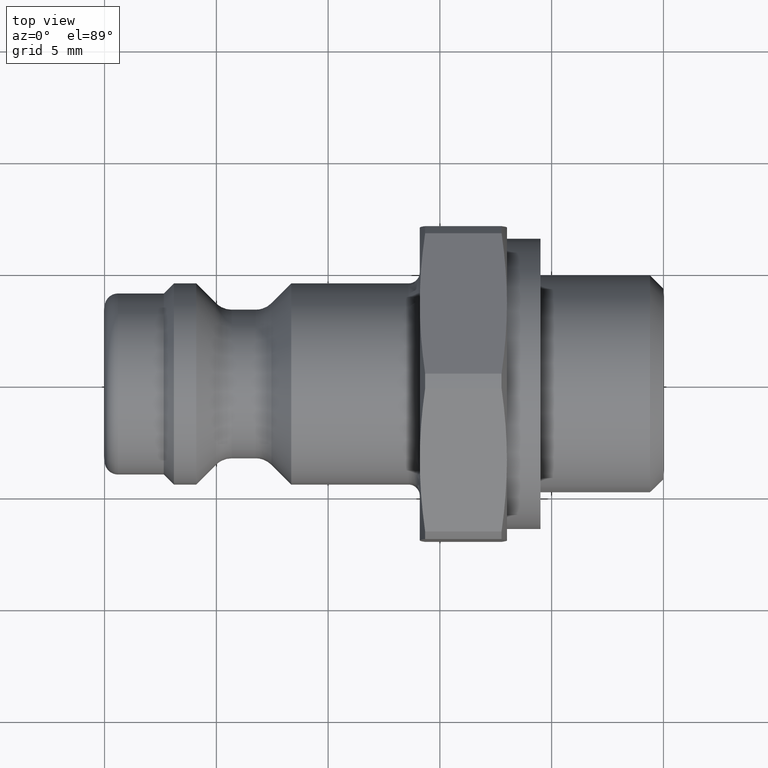
[diagram: clean part render]
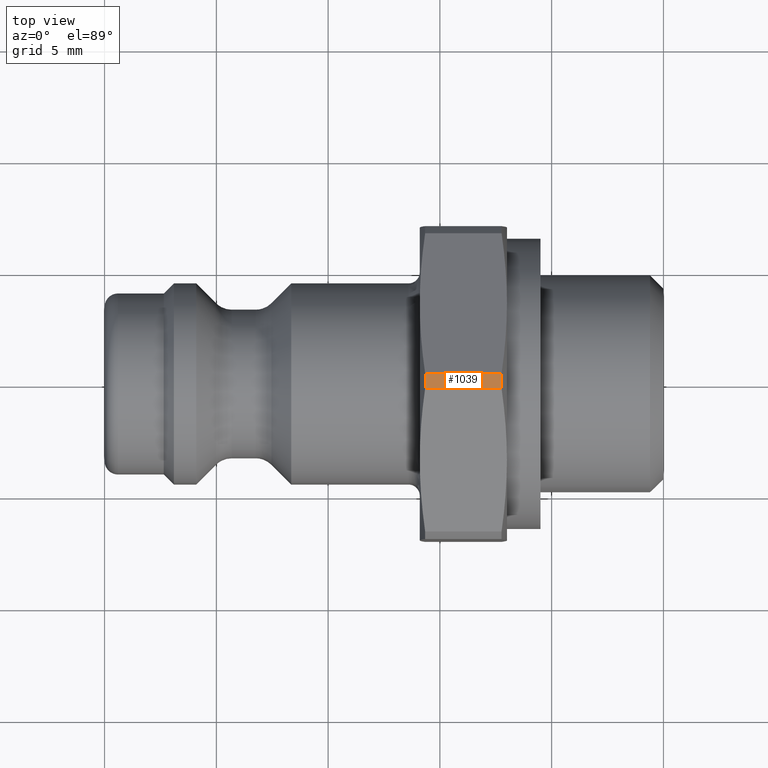
[diagram: same view with one face highlighted and labeled with its STEP entity id]
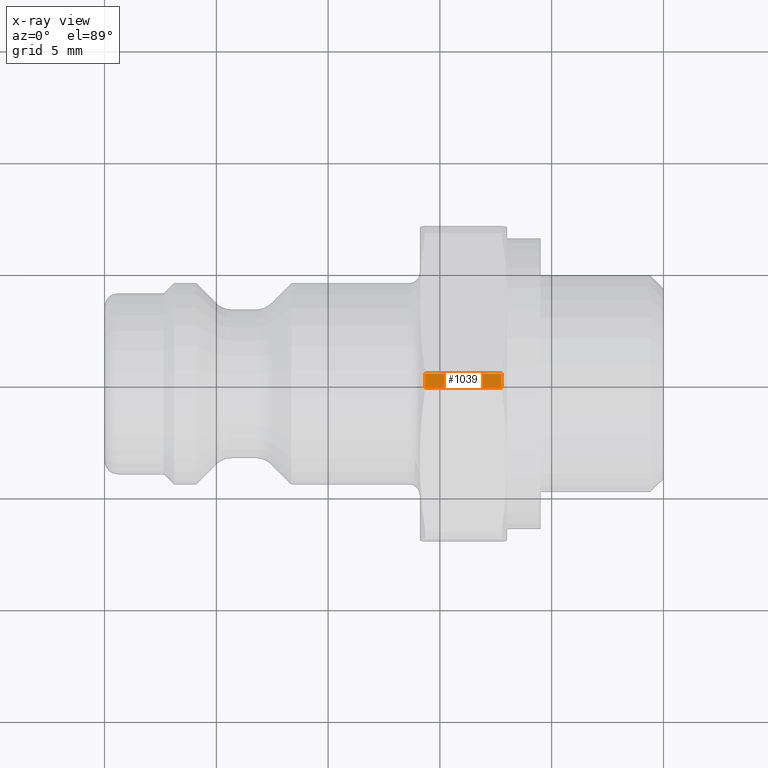
[diagram: x-ray of the same camera — body ghosted, the highlighted face saturated]
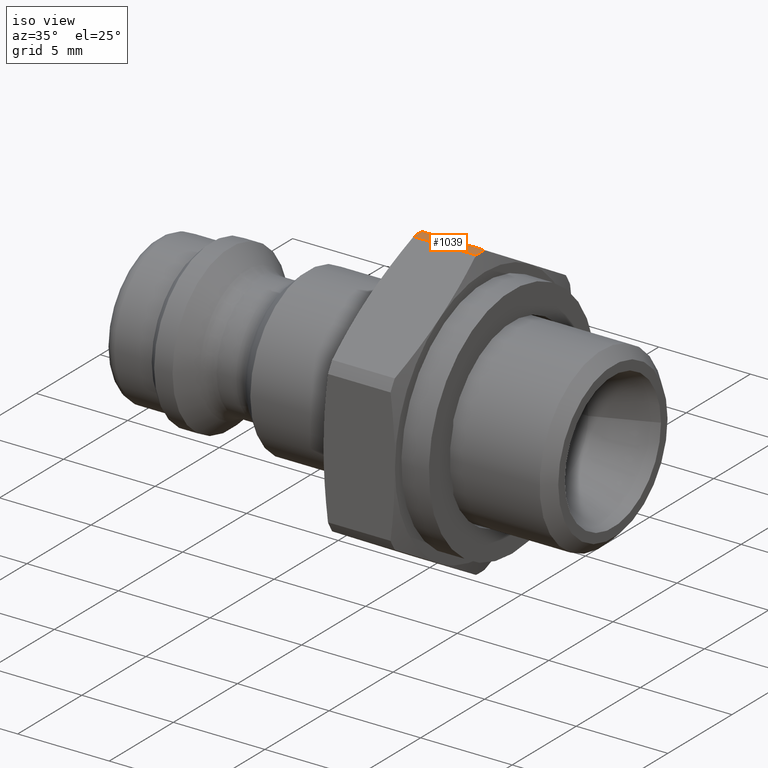
[diagram: same view with one face highlighted and labeled with its STEP entity id]
A machine part, top view. The second image highlights one B-rep face of the part: STEP entity #1039.
The next image is the same camera in x-ray: the body ghosted, the highlighted face saturated — about 0% of this face is hidden behind the body in this view.
A second angle (iso view) of the same face is appended — the face is thin or edge-on in the first view.
In plain terms, the highlighted cylindrical surface (partial cylindrical patch) has radius 7.9 mm, axis along (1, 0, 0).
Its self-contained STEP definition (entity closure, byte-faithful):
#677=CARTESIAN_POINT('',(17.758845726811991,-0.328643823220111,7.893161168851126));
#678=VERTEX_POINT('',#677);
#692=CARTESIAN_POINT('',(14.341154273188012,-0.328643823220111,7.893161168851126));
#693=VERTEX_POINT('',#692);
#694=CARTESIAN_POINT('',(14.341154273188014,-0.328643823220111,7.893161168851126));
#695=DIRECTION('',(1.0,0.0,0.0));
#696=VECTOR('',#695,3.417691453623977);
#697=LINE('',#694,#696);
#698=EDGE_CURVE('',#693,#678,#697,.T.);
#721=CARTESIAN_POINT('',(14.341154273188012,0.328643823220112,7.893161168851126));
#722=VERTEX_POINT('',#721);
#736=CARTESIAN_POINT('',(17.758845726811991,0.328643823220117,7.893161168851126));
#737=VERTEX_POINT('',#736);
#738=CARTESIAN_POINT('',(17.758845726811991,0.328643823220114,7.893161168851126));
#739=DIRECTION('',(-1.0,0.0,0.0));
#740=VECTOR('',#739,3.417691453623977);
#741=LINE('',#738,#740);
#742=EDGE_CURVE('',#737,#722,#741,.T.);
#852=CARTESIAN_POINT('',(17.758845726811991,0.0,0.0));
#853=DIRECTION('',(1.0,0.0,0.0));
#854=DIRECTION('',(0.0,1.0,0.0));
#855=AXIS2_PLACEMENT_3D('',#852,#853,#854);
#856=CIRCLE('',#855,7.900000000000000);
#857=EDGE_CURVE('',#737,#678,#856,.T.);
#1022=CARTESIAN_POINT('',(16.050000000000001,0.0,0.0));
#1023=DIRECTION('',(1.0,0.0,0.0));
#1024=DIRECTION('',(0.0,1.0,0.0));
#1025=AXIS2_PLACEMENT_3D('',#1022,#1023,#1024);
#1026=CYLINDRICAL_SURFACE('',#1025,7.900000000000000);
#1027=ORIENTED_EDGE('',*,*,#698,.T.);
#1028=ORIENTED_EDGE('',*,*,#857,.F.);
#1029=ORIENTED_EDGE('',*,*,#742,.T.);
#1030=CARTESIAN_POINT('',(14.341154273188012,0.0,0.0));
#1031=DIRECTION('',(1.0,0.0,0.0));
#1032=DIRECTION('',(0.0,1.0,0.0));
#1033=AXIS2_PLACEMENT_3D('',#1030,#1031,#1032);
#1034=CIRCLE('',#1033,7.900000000000000);
#1035=EDGE_CURVE('',#722,#693,#1034,.T.);
#1036=ORIENTED_EDGE('',*,*,#1035,.T.);
#1037=EDGE_LOOP('',(#1027,#1028,#1029,#1036));
#1038=FACE_OUTER_BOUND('',#1037,.T.);
#1039=ADVANCED_FACE('',(#1038),#1026,.T.);